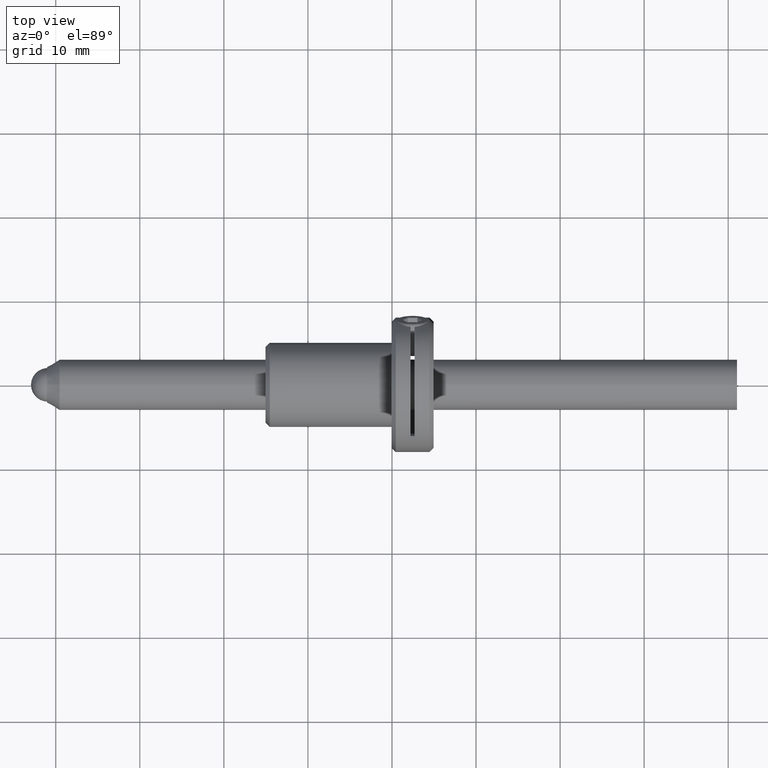
[diagram: clean part render]
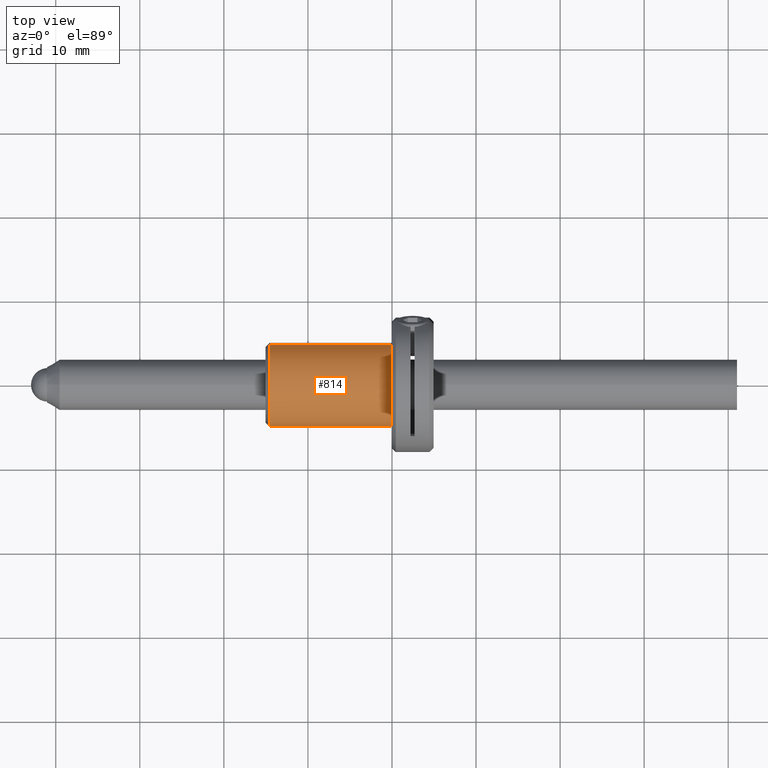
[diagram: same view with one face highlighted and labeled with its STEP entity id]
A machine part, top view. The second image highlights one B-rep face of the part: STEP entity #814.
In plain terms, the highlighted cylindrical surface (partial cylindrical patch) has radius 5 mm, axis along (-1, 0, 0).
Its self-contained STEP definition (entity closure, byte-faithful):
#53 = CARTESIAN_POINT ( 'NONE',  ( -0.04999999999999709538, 4.796282854146715735, 1.412682123840400372 ) ) ;
#103 = CARTESIAN_POINT ( 'NONE',  ( -0.04999999999999709538, -4.796282854146718400, -1.412682123840401704 ) ) ;
#131 = EDGE_LOOP ( 'NONE', ( #338, #1718, #1902, #1386 ) ) ;
#223 = FACE_OUTER_BOUND ( 'NONE', #131, .T. ) ;
#290 = CARTESIAN_POINT ( 'NONE',  ( -14.55000000000000071, -4.796282854146716623, -1.412682123840401260 ) ) ;
#300 = EDGE_CURVE ( 'NONE', #1093, #1907, #549, .T. ) ;
#338 = ORIENTED_EDGE ( 'NONE', *, *, #1549, .T. ) ;
#370 = DIRECTION ( 'NONE',  ( 0.000000000000000000, -0.9592565708293433469, -0.2825364247680801078 ) ) ;
#398 = CIRCLE ( 'NONE', #1434, 5.000000000000000888 ) ;
#424 = VECTOR ( 'NONE', #909, 1000.000000000000000 ) ;
#549 = CIRCLE ( 'NONE', #1272, 5.000000000000000000 ) ;
#594 = DIRECTION ( 'NONE',  ( -1.000000000000000000, 0.000000000000000000, 0.000000000000000000 ) ) ;
#619 = CARTESIAN_POINT ( 'NONE',  ( -14.55000000000000071, -5.426736848533666609E-16, -7.892009290543411720E-16 ) ) ;
#620 = CARTESIAN_POINT ( 'NONE',  ( -14.55000000000000071, 4.796282854146714847, 1.412682123840400150 ) ) ;
#626 = LINE ( 'NONE', #1676, #424 ) ;
#657 = LINE ( 'NONE', #972, #1339 ) ;
#737 = EDGE_CURVE ( 'NONE', #1252, #1093, #657, .T. ) ;
#783 = DIRECTION ( 'NONE',  ( 0.000000000000000000, 0.9592565708293433469, 0.2825364247680801078 ) ) ;
#814 = ADVANCED_FACE ( 'NONE', ( #223 ), #859, .T. ) ;
#821 = DIRECTION ( 'NONE',  ( -1.000000000000000000, 0.000000000000000000, 0.000000000000000000 ) ) ;
#859 = CYLINDRICAL_SURFACE ( 'NONE', #1978, 5.000000000000000000 ) ;
#888 = DIRECTION ( 'NONE',  ( 0.000000000000000000, -0.9592565708293433469, -0.2825364247680801078 ) ) ;
#909 = DIRECTION ( 'NONE',  ( -1.000000000000000000, 0.000000000000000000, 0.000000000000000000 ) ) ;
#972 = CARTESIAN_POINT ( 'NONE',  ( -32.40644179797200763, 4.796282854146715735, 1.412682123840400372 ) ) ;
#1093 = VERTEX_POINT ( 'NONE', #620 ) ;
#1252 = VERTEX_POINT ( 'NONE', #53 ) ;
#1253 = DIRECTION ( 'NONE',  ( 1.000000000000000000, 0.000000000000000000, 0.000000000000000000 ) ) ;
#1272 = AXIS2_PLACEMENT_3D ( 'NONE', #619, #1253, #783 ) ;
#1339 = VECTOR ( 'NONE', #1768, 1000.000000000000000 ) ;
#1386 = ORIENTED_EDGE ( 'NONE', *, *, #1895, .F. ) ;
#1434 = AXIS2_PLACEMENT_3D ( 'NONE', #1845, #594, #888 ) ;
#1459 = CARTESIAN_POINT ( 'NONE',  ( -32.40644179797200763, -5.426736848533666609E-16, -7.892009290543411720E-16 ) ) ;
#1549 = EDGE_CURVE ( 'NONE', #1832, #1252, #398, .T. ) ;
#1676 = CARTESIAN_POINT ( 'NONE',  ( -32.40644179797200763, -4.796282854146717511, -1.412682123840401482 ) ) ;
#1718 = ORIENTED_EDGE ( 'NONE', *, *, #737, .T. ) ;
#1768 = DIRECTION ( 'NONE',  ( -1.000000000000000000, 0.000000000000000000, 0.000000000000000000 ) ) ;
#1832 = VERTEX_POINT ( 'NONE', #103 ) ;
#1845 = CARTESIAN_POINT ( 'NONE',  ( -0.04999999999999709538, -5.426736848533666609E-16, -7.892009290543411720E-16 ) ) ;
#1895 = EDGE_CURVE ( 'NONE', #1832, #1907, #626, .T. ) ;
#1902 = ORIENTED_EDGE ( 'NONE', *, *, #300, .T. ) ;
#1907 = VERTEX_POINT ( 'NONE', #290 ) ;
#1978 = AXIS2_PLACEMENT_3D ( 'NONE', #1459, #821, #370 ) ;